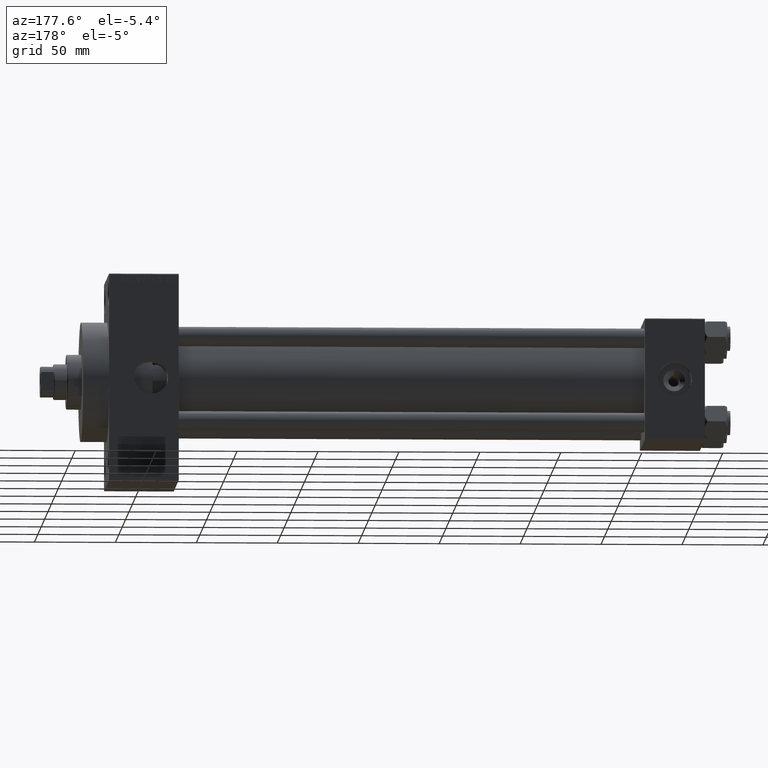
[diagram: clean part render]
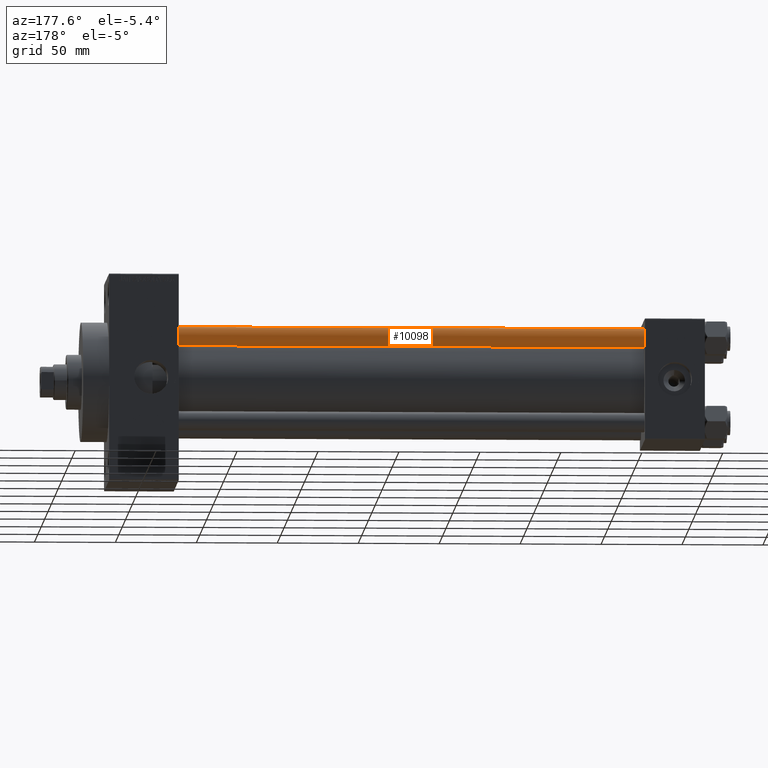
[diagram: same view with one face highlighted and labeled with its STEP entity id]
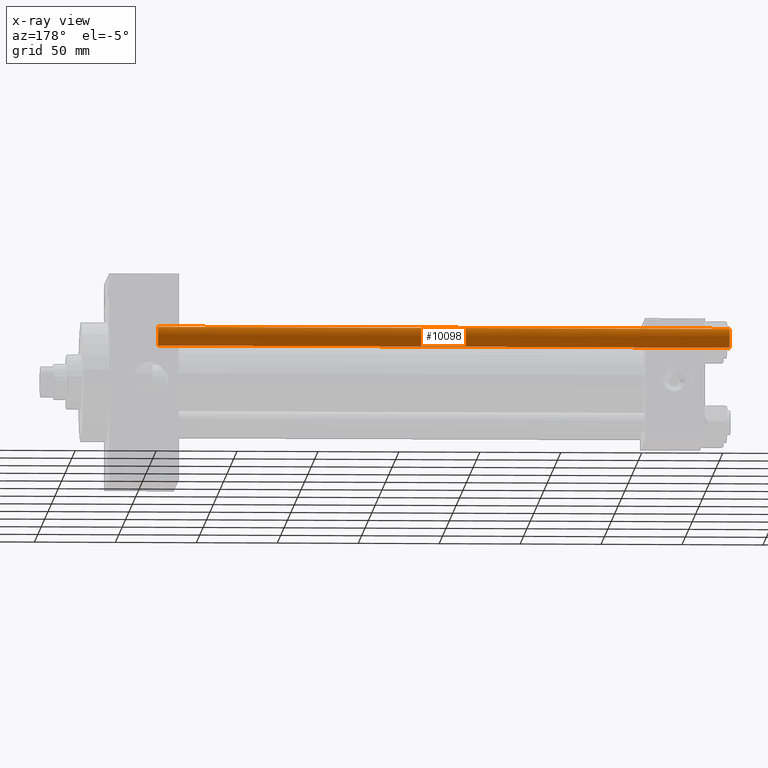
[diagram: x-ray of the same camera — body ghosted, the highlighted face saturated]
A machine part, auxiliary view. The second image highlights one B-rep face of the part: STEP entity #10098.
The next image is the same camera in x-ray: the body ghosted, the highlighted face saturated — about 0% of this face is hidden behind the body in this view.
In plain terms, the highlighted cylindrical surface (edge-blend (fillet) strip) has radius 6 mm, axis along (-1, -0, 0).
Its self-contained STEP definition (entity closure, byte-faithful):
#177 = VERTEX_POINT ( 'NONE', #17227 ) ;
#1418 = DIRECTION ( 'NONE',  ( -0.000000000000000000, -0.000000000000000000, -1.000000000000000000 ) ) ;
#1474 = VECTOR ( 'NONE', #1418, 1000.000000000000000 ) ;
#1727 = LINE ( 'NONE', #2484, #32010 ) ;
#2484 = CARTESIAN_POINT ( 'NONE',  ( 6.000000000000000888, 7.347880794884120722E-16, 354.0000000000000000 ) ) ;
#4536 = CARTESIAN_POINT ( 'NONE',  ( -6.000000000000000888, 0.000000000000000000, 353.5000000000000000 ) ) ;
#5086 = VERTEX_POINT ( 'NONE', #4536 ) ;
#7265 = DIRECTION ( 'NONE',  ( -1.000000000000000000, 0.000000000000000000, 0.000000000000000000 ) ) ;
#10098 = ADVANCED_FACE ( 'NONE', ( #14502 ), #29694, .T. ) ;
#10766 = DIRECTION ( 'NONE',  ( -0.000000000000000000, -0.000000000000000000, -1.000000000000000000 ) ) ;
#11495 = DIRECTION ( 'NONE',  ( 1.000000000000000000, 0.000000000000000000, 0.000000000000000000 ) ) ;
#11940 = AXIS2_PLACEMENT_3D ( 'NONE', #17240, #28182, #24458 ) ;
#13941 = DIRECTION ( 'NONE',  ( -0.000000000000000000, -0.000000000000000000, -1.000000000000000000 ) ) ;
#14502 = FACE_OUTER_BOUND ( 'NONE', #44036, .T. ) ;
#15287 = VERTEX_POINT ( 'NONE', #28297 ) ;
#16568 = EDGE_CURVE ( 'NONE', #177, #38805, #1727, .T. ) ;
#17227 = CARTESIAN_POINT ( 'NONE',  ( 6.000000000000000888, 7.347880794884120722E-16, 353.5000000000000000 ) ) ;
#17240 = CARTESIAN_POINT ( 'NONE',  ( 0.000000000000000000, 0.000000000000000000, 0.5000000000000559552 ) ) ;
#17370 = CARTESIAN_POINT ( 'NONE',  ( -6.000000000000000888, 0.000000000000000000, 354.0000000000000000 ) ) ;
#17513 = ORIENTED_EDGE ( 'NONE', *, *, #48358, .T. ) ;
#18966 = DIRECTION ( 'NONE',  ( 0.000000000000000000, 0.000000000000000000, -1.000000000000000000 ) ) ;
#21413 = AXIS2_PLACEMENT_3D ( 'NONE', #45636, #18966, #11495 ) ;
#24458 = DIRECTION ( 'NONE',  ( 1.000000000000000000, 0.000000000000000000, 0.000000000000000000 ) ) ;
#28182 = DIRECTION ( 'NONE',  ( -0.000000000000000000, -0.000000000000000000, 1.000000000000000000 ) ) ;
#28297 = CARTESIAN_POINT ( 'NONE',  ( -6.000000000000000888, 0.000000000000000000, 0.5000000000000559552 ) ) ;
#29694 = CYLINDRICAL_SURFACE ( 'NONE', #37847, 6.000000000000000888 ) ;
#30205 = ORIENTED_EDGE ( 'NONE', *, *, #42662, .F. ) ;
#30615 = ORIENTED_EDGE ( 'NONE', *, *, #16568, .T. ) ;
#32010 = VECTOR ( 'NONE', #13941, 1000.000000000000000 ) ;
#36034 = LINE ( 'NONE', #17370, #1474 ) ;
#37847 = AXIS2_PLACEMENT_3D ( 'NONE', #44905, #10766, #7265 ) ;
#38805 = VERTEX_POINT ( 'NONE', #43022 ) ;
#41318 = CIRCLE ( 'NONE', #21413, 6.000000000000000888 ) ;
#42662 = EDGE_CURVE ( 'NONE', #5086, #15287, #36034, .T. ) ;
#43022 = CARTESIAN_POINT ( 'NONE',  ( 6.000000000000000888, 7.347880794884120722E-16, 0.5000000000000559552 ) ) ;
#43691 = EDGE_CURVE ( 'NONE', #5086, #177, #41318, .T. ) ;
#44036 = EDGE_LOOP ( 'NONE', ( #48336, #30615, #17513, #30205 ) ) ;
#44572 = CIRCLE ( 'NONE', #11940, 6.000000000000000888 ) ;
#44905 = CARTESIAN_POINT ( 'NONE',  ( 0.000000000000000000, 0.000000000000000000, 354.0000000000000000 ) ) ;
#45636 = CARTESIAN_POINT ( 'NONE',  ( 0.000000000000000000, 0.000000000000000000, 353.5000000000000000 ) ) ;
#48336 = ORIENTED_EDGE ( 'NONE', *, *, #43691, .T. ) ;
#48358 = EDGE_CURVE ( 'NONE', #38805, #15287, #44572, .T. ) ;